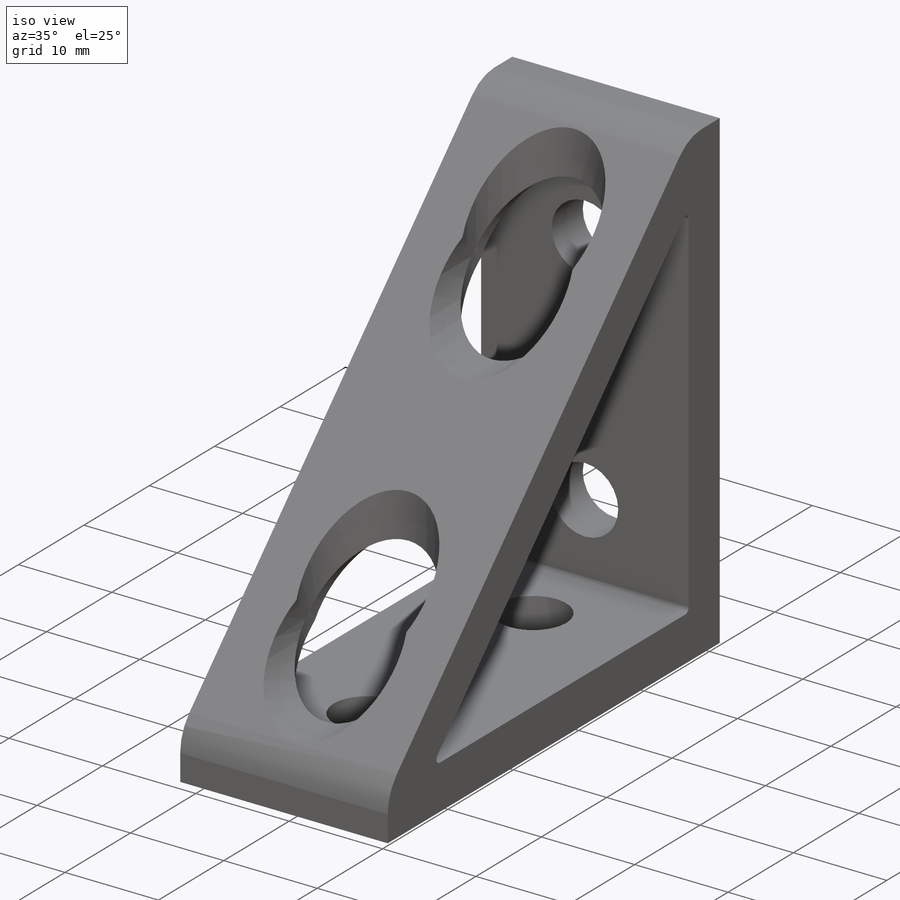
[diagram: iso view]
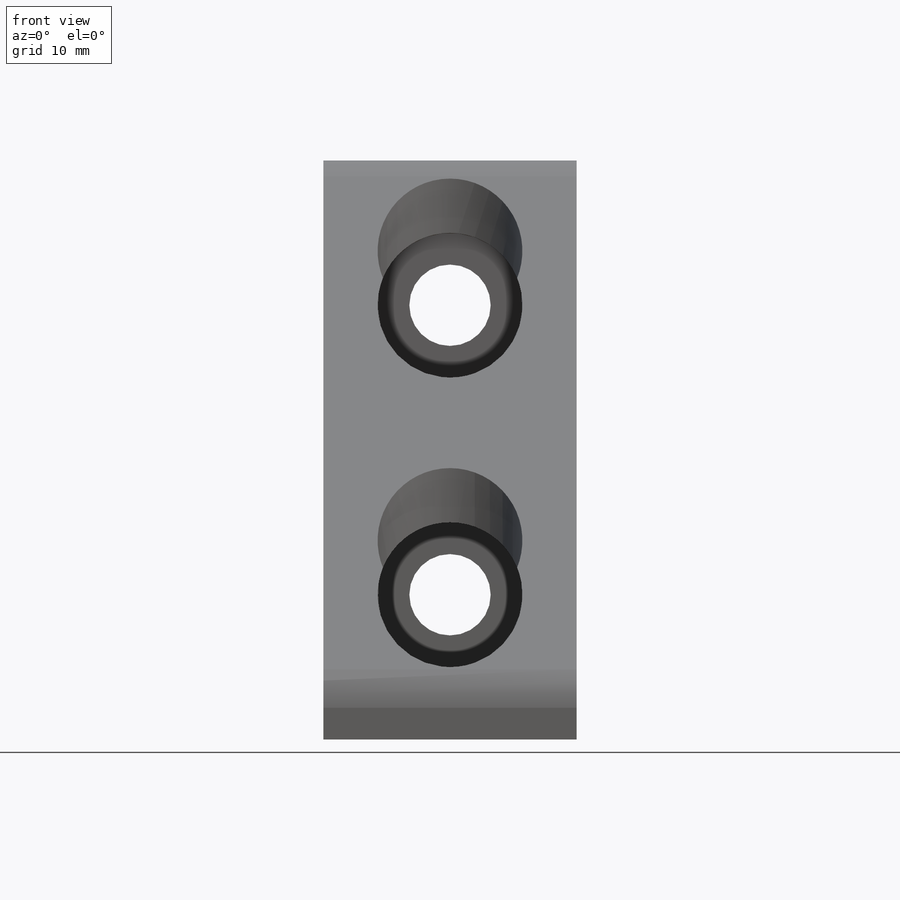
[diagram: front view]
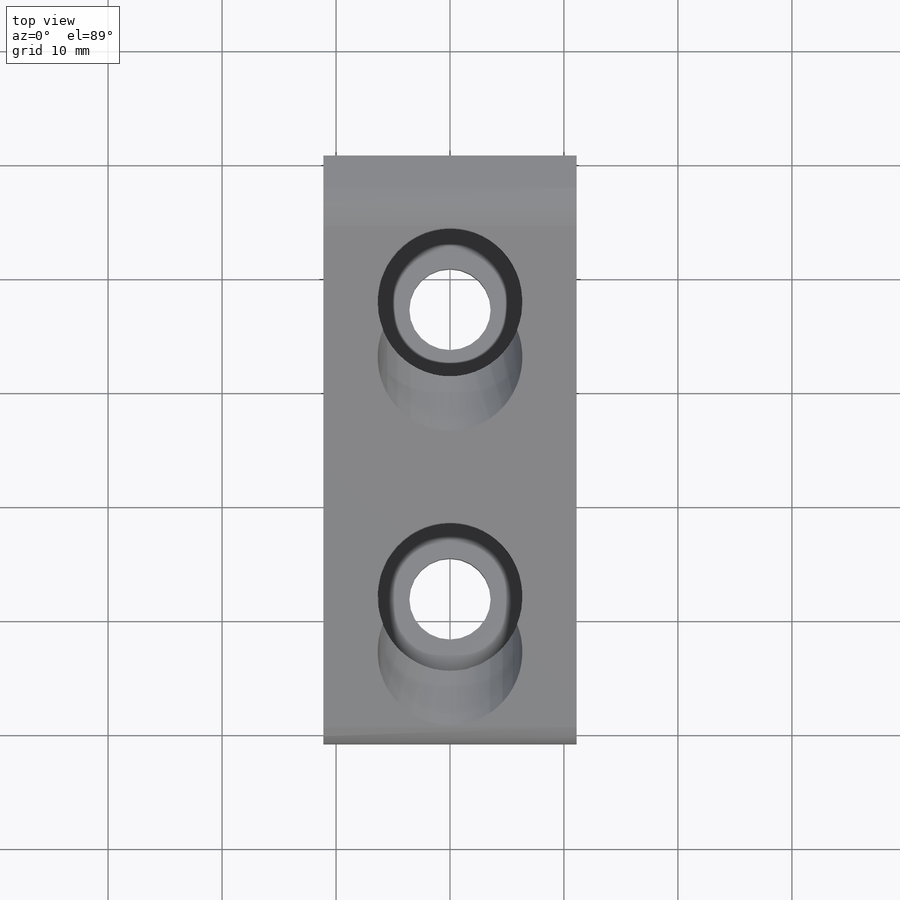
[diagram: top view]
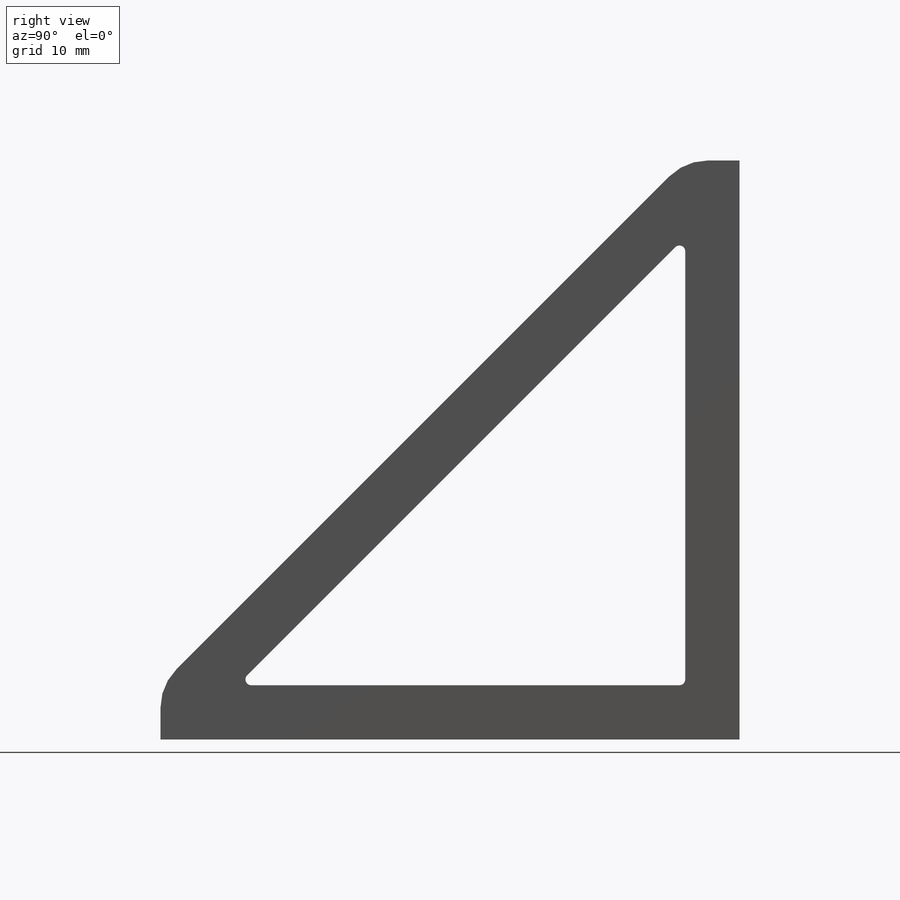
[diagram: right view]
SOLIDWORKS PART (.sldprt)
format: sldprt  version: not decoded by parser v0  size: 283,136 bytes
history: native  units: mm
features: sketch x9, cut_extrude x4, hole x2, material x1, extrude x1 (+13 scaffold rows collapsed)
feature tree (30):
  scaffold x13  (default folders/planes/origin — collapsed)
  material  "6105-T5 Aluminum"
  sketch  "Sketch1"  dims[D1=50.8mm]
  extrude  "Boss-Extrude1"  Depth=22.225mm
  hole  "K (0.281) Diameter Hole1"  Diameter=7.1374mm Depth=6.5278mm
  sketch  "Sketch3"  dims[D1=12.7mm D2=25.4mm]
  sketch  "Sketch2"  dims[hole-wizard template sketch: 46 standard entries collapsed; hole parameters kept: c15.Hole Dia.=7.1374mm c15.Hole Depth=6.5278mm c15.D3=~14.816244mm c15.Drill Angle=118.0deg]
  hole  "K (0.281) Diameter Hole2"  Diameter=7.1374mm Depth=6.604mm
  sketch  "Sketch5"  dims[D1=12.7mm D2=25.4mm]
  sketch  "Sketch4"  dims[hole-wizard template sketch: 46 standard entries collapsed; hole parameters kept: c15.Hole Dia.=7.1374mm c15.Hole Depth=6.604mm c15.D3=~14.816244mm c15.Drill Angle=118.0deg]
  sketch  "Sketch7"  dims[D1=12.7mm]
  cut_extrude  "Cut-Extrude2"  Depth=47.625mm
  sketch  "Sketch8"  dims[D1=12.7mm]
  cut_extrude  "Cut-Extrude3"  Depth=47.625mm
  sketch  "Sketch9"  dims[D1=12.7mm]
  cut_extrude  "Cut-Extrude4"  Depth=47.625mm
  sketch  "Sketch11"  dims[D1=12.7mm]
  cut_extrude  "Cut-Extrude6"  Depth=47.625mm
decode coverage: 16 of 16 modeling features carry decoded parameters
note: ~ marks probable driven/reference dimensions
note: suppression state not decoded; provenance and decode notes live in map.json
